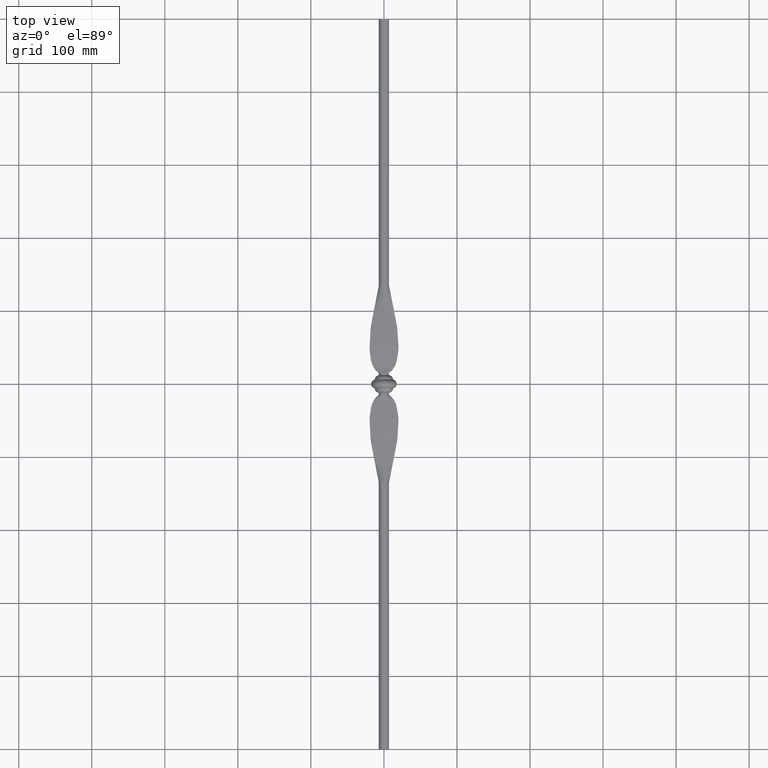
[diagram: clean part render]
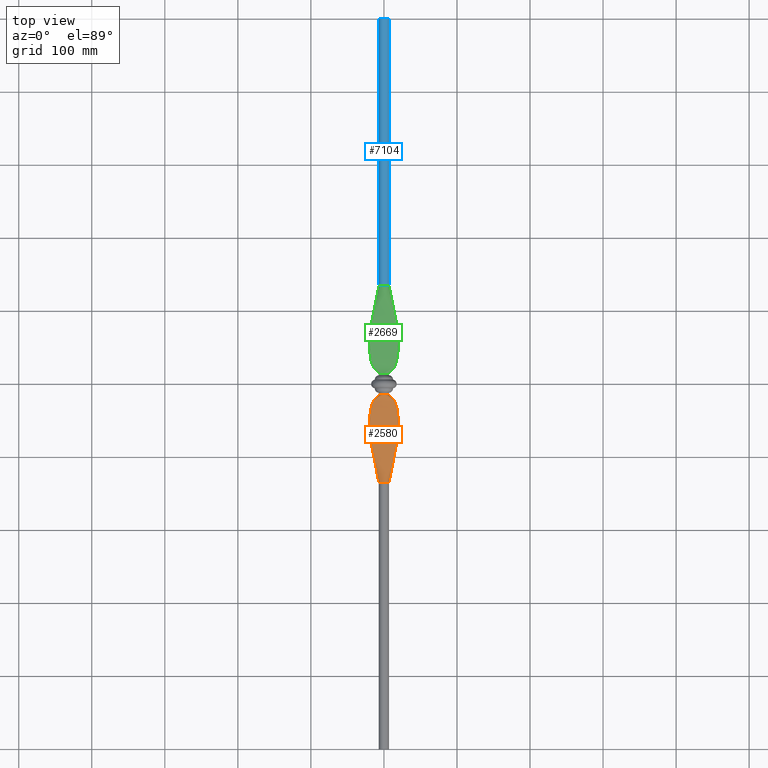
[diagram: same view with three faces highlighted in distinct colors, each labeled with its STEP entity id]
A machine part, top view with three faces highlighted in distinct colors.
Their STEP definitions:

[orange] entity #2580 — the highlighted face is a freeform B-spline surface patch.
#56 = EDGE_LOOP ( 'NONE', ( #2689, #1533, #8397, #7388 ) ) ;
#163 = CARTESIAN_POINT ( 'NONE',  ( -4.444174800295939143, -134.9999999999998579, 5.450960426284312099 ) ) ;
#224 = CARTESIAN_POINT ( 'NONE',  ( -5.997261593334625829, -14.99999999999998224, 3.676776374839473949 ) ) ;
#258 = CARTESIAN_POINT ( 'NONE',  ( 2.039018411626693172, -14.99999999999998224, 6.781144779481986795 ) ) ;
#291 = CARTESIAN_POINT ( 'NONE',  ( -5.405649642311328051, -20.00000000000000355, 4.372447557243239302 ) ) ;
#325 = CARTESIAN_POINT ( 'NONE',  ( 16.13551471795209480, -54.35732307940470065, 2.331615047226596182 ) ) ;
#390 = CARTESIAN_POINT ( 'NONE',  ( 12.68915908251746671, -54.35732307940465091, 1.484608310807433940 ) ) ;
#392 = CARTESIAN_POINT ( 'NONE',  ( -27.47809851660136005, -54.35732307940454433, 5.657255576947304299 ) ) ;
#594 = EDGE_CURVE ( 'NONE', #8235, #4312, #6315, .T. ) ;
#837 = CARTESIAN_POINT ( 'NONE',  ( 6.856841665822162035, -14.99999999999999822, 1.411702947449654966 ) ) ;
#924 = CARTESIAN_POINT ( 'NONE',  ( 9.166843033586842494E-05, -20.00000000000001066, 4.715646425158594113 ) ) ;
#956 = CARTESIAN_POINT ( 'NONE',  ( -27.47809851660136005, -54.35732307940454433, 5.657255576947304299 ) ) ;
#988 = CARTESIAN_POINT ( 'NONE',  ( 5.405680785559456858, -20.00000000000001421, 4.372452980442496084 ) ) ;
#1026 = CARTESIAN_POINT ( 'NONE',  ( -6.536258482938118952, -135.0000000000000284, 2.602573307551223181 ) ) ;
#1093 = CARTESIAN_POINT ( 'NONE',  ( 7.148164557891438342, -20.00000000000002487, 4.150363918274518227 ) ) ;
#1126 = CARTESIAN_POINT ( 'NONE',  ( 13.61873310093187506, -100.0000000000000995, 2.803856814897803140 ) ) ;
#1306 = CARTESIAN_POINT ( 'NONE',  ( 6.856862221467370233, -135.0000000000000000, 1.411707075175663295 ) ) ;
#1533 = ORIENTED_EDGE ( 'NONE', *, *, #5790, .T. ) ;
#1584 = CARTESIAN_POINT ( 'NONE',  ( 3.804171510026017167, -15.00000000000000888, 5.929995903319427164 ) ) ;
#1616 = CARTESIAN_POINT ( 'NONE',  ( 5.041053853694467790, -15.00000000000000533, 4.921823679819405051 ) ) ;
#1639 = EDGE_CURVE ( 'NONE', #2448, #8235, #2761, .T. ) ;
#1647 = CARTESIAN_POINT ( 'NONE',  ( -5.041053889611933236, -15.00000000000001066, 4.921823643031780549 ) ) ;
#1668 = CARTESIAN_POINT ( 'NONE',  ( -2.039553820284633279, -14.99999999999999112, 6.781052207825751132 ) ) ;
#1703 = CARTESIAN_POINT ( 'NONE',  ( -3.040979491009642377, -19.99999999999996803, 4.593691833101407163 ) ) ;
#1769 = CARTESIAN_POINT ( 'NONE',  ( -13.13185738359201871, -19.99999999999995381, 2.944889439690402622 ) ) ;
#1801 = CARTESIAN_POINT ( 'NONE',  ( -5.291601994311204038, -135.0000000000000284, 4.631649847564234257 ) ) ;
#1899 = CARTESIAN_POINT ( 'NONE',  ( 6.856199302796533779, -15.00000000000001599, 1.411570444693408310 ) ) ;
#1966 = CARTESIAN_POINT ( 'NONE',  ( -13.61873310093224099, -19.99999999999995381, 2.803856814897803584 ) ) ;
#2448 = VERTEX_POINT ( 'NONE', #6656 ) ;
#2468 = CARTESIAN_POINT ( 'NONE',  ( 3.040801020099367147, -99.99999999999967315, 4.593722689578361162 ) ) ;
#2473 = CARTESIAN_POINT ( 'NONE',  ( 3.098857485633832898, -15.00000000000000533, 6.327215388684813924 ) ) ;
#2514 = CARTESIAN_POINT ( 'NONE',  ( 6.856862221467370233, -135.0000000000000000, 1.411707075175663295 ) ) ;
#2531 = CARTESIAN_POINT ( 'NONE',  ( -6.536258482937726377, -14.99999999999997868, 2.602573307551223625 ) ) ;
#2563 = CARTESIAN_POINT ( 'NONE',  ( -6.856199302796595951, -14.99999999999997513, 1.411570444693410087 ) ) ;
#2580 = ADVANCED_FACE ( 'NONE', ( #7795 ), #3381, .F. ) ;
#2596 = CARTESIAN_POINT ( 'NONE',  ( 5.291619084111582438, -135.0000000000000000, 4.631659466900492461 ) ) ;
#2614 = AXIS2_PLACEMENT_3D ( 'NONE', #6864, #9135, #5350 ) ;
#2658 = CARTESIAN_POINT ( 'NONE',  ( 7.148164557891179882, -99.99999999999988631, 4.150363918274516450 ) ) ;
#2689 = ORIENTED_EDGE ( 'NONE', *, *, #7464, .F. ) ;
#2694 = CARTESIAN_POINT ( 'NONE',  ( 6.772497196122930774, -135.0000000000000000, 1.818123534248976991 ) ) ;
#2724 = CARTESIAN_POINT ( 'NONE',  ( 5.997252531312792456, -15.00000000000000888, 3.676771030734634405 ) ) ;
#2761 = CIRCLE ( 'NONE', #2614, 7.000000000000000000 ) ;
#2901 = CARTESIAN_POINT ( 'NONE',  ( 13.61873310093213796, -20.00000000000003908, 2.803856814897803140 ) ) ;
#3106 = CARTESIAN_POINT ( 'NONE',  ( 6.695309512353297521, -15.00000000000000178, 2.193035071509452649 ) ) ;
#3170 = VERTEX_POINT ( 'NONE', #9523 ) ;
#3191 = CARTESIAN_POINT ( 'NONE',  ( -5.997261593335019292, -134.9999999999999716, 3.676776374839473949 ) ) ;
#3194 = CARTESIAN_POINT ( 'NONE',  ( -3.098857531807295285, -15.00000000000001066, 6.327215366070571889 ) ) ;
#3255 = CARTESIAN_POINT ( 'NONE',  ( 0.0002750039334343680041, -135.0000000000003411, 7.146954802386306760 ) ) ;
#3290 = CARTESIAN_POINT ( 'NONE',  ( -13.13185738359227983, -99.99999999999984368, 2.944889439690403066 ) ) ;
#3322 = CARTESIAN_POINT ( 'NONE',  ( -3.467041301601914149, -14.99999999999998579, 6.117381491008856642 ) ) ;
#3381 = B_SPLINE_SURFACE_WITH_KNOTS ( 'NONE', 3, 3, ( 
 ( #2563, #4034, #956, #5533, #6243 ),
 ( #9439, #1769, #3970, #3290, #4842 ),
 ( #2531, #8586, #7891, #4002, #1026 ),
 ( #224, #6369, #4876, #4066, #3191 ),
 ( #8651, #9309, #4101, #7927, #1801 ),
 ( #9344, #4772, #7149, #8686, #163 ),
 ( #3322, #291, #4739, #5637, #9409 ),
 ( #1668, #1703, #6306, #7088, #8616 ),
 ( #5497, #924, #5567, #6271, #3255 ),
 ( #258, #5600, #7054, #2468, #7829 ),
 ( #9375, #988, #8060, #6503, #5706 ),
 ( #4974, #1093, #390, #2658, #4198 ),
 ( #3458, #5008, #325, #9533, #2596 ),
 ( #2724, #7249, #7211, #5735, #8820 ),
 ( #7998, #4939, #9468, #8026, #8098 ),
 ( #7962, #5667, #4235, #9606, #2694 ),
 ( #1899, #6437, #4165, #1126, #9568 ) ),
 .UNSPECIFIED., .F., .F., .F.,
 ( 4, 1, 1, 1, 1, 1, 1, 1, 1, 1, 1, 1, 1, 1, 4 ),
 ( 4, 1, 4 ),
 ( 0.000000000000000000, 0.06250000000000000000, 0.1250000000000000000, 0.1875000000000000000, 0.2500000000000000000, 0.3125000000000000000, 0.3750000000000000000, 0.5000000000000000000, 0.6250000000000000000, 0.6875000000000000000, 0.7500000000000000000, 0.8125000000000000000, 0.8750000000000000000, 0.9375000000000000000, 1.000000000000000000 ),
 ( 0.000000000000000000, 0.1422080359755977519, 1.000000000000000000 ),
 .UNSPECIFIED. ) ;
#3458 = CARTESIAN_POINT ( 'NONE',  ( 5.291619084111989224, -15.00000000000001954, 4.631659466900498678 ) ) ;
#3493 = CARTESIAN_POINT ( 'NONE',  ( -6.856841665811181485, -134.9999999999999432, 1.411702947447297962 ) ) ;
#3875 = CARTESIAN_POINT ( 'NONE',  ( 6.856841665822162035, -14.99999999999999822, 1.411702947449654966 ) ) ;
#3970 = CARTESIAN_POINT ( 'NONE',  ( -26.08349734730773051, -54.35732307940454433, 5.220214142259284706 ) ) ;
#4002 = CARTESIAN_POINT ( 'NONE',  ( -12.08927144907258189, -99.99999999999995737, 3.198298283466709524 ) ) ;
#4034 = CARTESIAN_POINT ( 'NONE',  ( -13.61873310093224099, -19.99999999999995381, 2.803856814897803584 ) ) ;
#4066 = CARTESIAN_POINT ( 'NONE',  ( -10.50073454545995055, -99.99999999999984368, 3.559611265878311226 ) ) ;
#4101 = CARTESIAN_POINT ( 'NONE',  ( -16.13553247050660389, -54.35732307940460117, 2.331625042883333165 ) ) ;
#4165 = CARTESIAN_POINT ( 'NONE',  ( 27.47809851660102609, -54.35732307940470065, 5.657255576947310516 ) ) ;
#4198 = CARTESIAN_POINT ( 'NONE',  ( 4.444139596681464965, -134.9999999999999716, 5.450944256851179226 ) ) ;
#4235 = CARTESIAN_POINT ( 'NONE',  ( 26.08350033501719523, -54.35732307940467933, 5.220215922383650842 ) ) ;
#4312 = VERTEX_POINT ( 'NONE', #3875 ) ;
#4382 = CARTESIAN_POINT ( 'NONE',  ( 6.856841665822162035, -14.99999999999999822, 1.411702947449654966 ) ) ;
#4739 = CARTESIAN_POINT ( 'NONE',  ( -9.378888438314591625, -54.35732307940456565, 0.7964005125170698918 ) ) ;
#4772 = CARTESIAN_POINT ( 'NONE',  ( -7.148176301025594981, -19.99999999999997158, 4.150369313203929877 ) ) ;
#4842 = CARTESIAN_POINT ( 'NONE',  ( -6.772497196123784313, -134.9999999999999432, 1.818123534248978546 ) ) ;
#4876 = CARTESIAN_POINT ( 'NONE',  ( -19.72017589151560557, -54.35732307940455144, 3.315272578232601131 ) ) ;
#4939 = CARTESIAN_POINT ( 'NONE',  ( 12.08927356644728057, -20.00000000000003908, 3.198299545031878743 ) ) ;
#4974 = CARTESIAN_POINT ( 'NONE',  ( 4.444139596681854876, -15.00000000000000355, 5.450944256851178338 ) ) ;
#5008 = CARTESIAN_POINT ( 'NONE',  ( 8.846765048007743104, -20.00000000000001421, 3.877036096761483197 ) ) ;
#5010 = CARTESIAN_POINT ( 'NONE',  ( -6.856862221467691754, -15.00000000000001243, 1.411707075175627768 ) ) ;
#5114 = CARTESIAN_POINT ( 'NONE',  ( 13.61873310093187506, -100.0000000000000426, 2.803856814897802696 ) ) ;
#5350 = DIRECTION ( 'NONE',  ( -1.000000000000000000, 3.965082230804130614E-15, 0.000000000000000000 ) ) ;
#5384 = CARTESIAN_POINT ( 'NONE',  ( -5.572341953798708225, -15.00000000000001776, 4.311099330914677452 ) ) ;
#5418 = CARTESIAN_POINT ( 'NONE',  ( 1.595528809943780324, -15.00000000000000533, 6.862278055261098686 ) ) ;
#5497 = CARTESIAN_POINT ( 'NONE',  ( 0.0002750039338347400682, -15.00000000000001599, 7.146954802386313865 ) ) ;
#5503 = CARTESIAN_POINT ( 'NONE',  ( 0.7978547802212960782, -15.00000000000000888, 7.000000002911187735 ) ) ;
#5533 = CARTESIAN_POINT ( 'NONE',  ( -13.61873310093250034, -99.99999999999995737, 2.803856814897803584 ) ) ;
#5567 = CARTESIAN_POINT ( 'NONE',  ( -0.0002840683311011952942, -54.35732307940446617, -0.2671273473494419348 ) ) ;
#5600 = CARTESIAN_POINT ( 'NONE',  ( 3.040801020099622942, -19.99999999999999289, 4.593722689578362939 ) ) ;
#5637 = CARTESIAN_POINT ( 'NONE',  ( -5.405649642311592729, -100.0000000000001990, 4.372447557243239302 ) ) ;
#5667 = CARTESIAN_POINT ( 'NONE',  ( 13.13185641946238569, -20.00000000000004619, 2.944888865246901855 ) ) ;
#5706 = CARTESIAN_POINT ( 'NONE',  ( 3.467134724559673309, -135.0000000000001421, 6.117397756600939651 ) ) ;
#5735 = CARTESIAN_POINT ( 'NONE',  ( 10.50073140489130985, -100.0000000000002700, 3.559609413075492057 ) ) ;
#5790 = EDGE_CURVE ( 'NONE', #3170, #2448, #8217, .T. ) ;
#6192 = CARTESIAN_POINT ( 'NONE',  ( 5.572341922338072351, -15.00000000000000178, 4.311099371579430795 ) ) ;
#6243 = CARTESIAN_POINT ( 'NONE',  ( -6.856199302796990303, -134.9999999999999716, 1.411570444693409865 ) ) ;
#6271 = CARTESIAN_POINT ( 'NONE',  ( 9.166843006692779346E-05, -100.0000000000002132, 4.715646425158584343 ) ) ;
#6306 = CARTESIAN_POINT ( 'NONE',  ( -5.093229944318773406, -54.35732307940466512, 0.1107937893935325296 ) ) ;
#6315 = B_SPLINE_CURVE_WITH_KNOTS ( 'NONE', 3,
 ( #1306, #5114, #7424, #2901, #4382 ),
 .UNSPECIFIED., .F., .F.,
 ( 4, 1, 4 ),
 ( 0.000000000000000000, 0.8577919640244022759, 1.000000000000000000 ),
 .UNSPECIFIED. ) ;
#6369 = CARTESIAN_POINT ( 'NONE',  ( -10.50073454545969476, -19.99999999999998224, 3.559611265878309005 ) ) ;
#6437 = CARTESIAN_POINT ( 'NONE',  ( 13.61873310093214151, -20.00000000000003553, 2.803856814897801808 ) ) ;
#6503 = CARTESIAN_POINT ( 'NONE',  ( 5.405680785559187740, -100.0000000000002132, 4.372452980442496973 ) ) ;
#6656 = CARTESIAN_POINT ( 'NONE',  ( -6.856841665811181485, -134.9999999999999432, 1.411702947447297962 ) ) ;
#6864 = CARTESIAN_POINT ( 'NONE',  ( -4.268035437749235970E-13, -134.9999999999999716, 0.000000000000000000 ) ) ;
#7054 = CARTESIAN_POINT ( 'NONE',  ( 5.093783002042742147, -54.35732307940462249, 0.1106981692561499614 ) ) ;
#7059 = CARTESIAN_POINT ( 'NONE',  ( -1.595528860021920181, -15.00000000000000533, 6.862278043617553891 ) ) ;
#7088 = CARTESIAN_POINT ( 'NONE',  ( -3.040979491009901725, -99.99999999999985789, 4.593691833101405386 ) ) ;
#7149 = CARTESIAN_POINT ( 'NONE',  ( -12.68912269209987720, -54.35732307940466512, 1.484591592635352342 ) ) ;
#7211 = CARTESIAN_POINT ( 'NONE',  ( 19.72018562371986405, -54.35732307940463670, 3.315278319823293351 ) ) ;
#7249 = CARTESIAN_POINT ( 'NONE',  ( 10.50073140489156387, -20.00000000000003197, 3.559609413075482287 ) ) ;
#7388 = ORIENTED_EDGE ( 'NONE', *, *, #594, .T. ) ;
#7424 = CARTESIAN_POINT ( 'NONE',  ( 27.47809851660103675, -54.35732307940470065, 5.657255576947306963 ) ) ;
#7464 = EDGE_CURVE ( 'NONE', #3170, #4312, #7620, .T. ) ;
#7542 = CARTESIAN_POINT ( 'NONE',  ( -6.856862221467691754, -15.00000000000001243, 1.411707075175627768 ) ) ;
#7620 = B_SPLINE_CURVE_WITH_KNOTS ( 'NONE', 3,
 ( #7542, #8320, #9072, #5384, #1647, #9258, #3194, #7059, #7775, #5503, #5418, #2473, #1584, #1616, #6192, #9230, #3106, #837 ),
 .UNSPECIFIED., .F., .F.,
 ( 4, 2, 2, 2, 2, 2, 2, 2, 4 ),
 ( 0.03231565163621009928, 0.08673673858197633590, 0.1411578255277425864, 0.1955789124735087814, 0.2499999994192749764, 0.3044210863650411714, 0.3588421733108074219, 0.4132632602565736724, 0.4676843472023398673 ),
 .UNSPECIFIED. ) ;
#7775 = CARTESIAN_POINT ( 'NONE',  ( -0.7978548313044756535, -15.00000000000000533, 6.999999997088758974 ) ) ;
#7795 = FACE_OUTER_BOUND ( 'NONE', #56, .T. ) ;
#7829 = CARTESIAN_POINT ( 'NONE',  ( 2.039018411626302374, -134.9999999999998010, 6.781144779481993012 ) ) ;
#7891 = CARTESIAN_POINT ( 'NONE',  ( -23.50760401158428081, -54.35732307940450170, 4.434933681022048546 ) ) ;
#7927 = CARTESIAN_POINT ( 'NONE',  ( -8.846759319285123269, -99.99999999999997158, 3.877032871177828355 ) ) ;
#7962 = CARTESIAN_POINT ( 'NONE',  ( 6.772497196123328678, -15.00000000000001599, 1.818123534248977435 ) ) ;
#7998 = CARTESIAN_POINT ( 'NONE',  ( 6.536263492701330335, -15.00000000000001776, 2.602576292446893369 ) ) ;
#8026 = CARTESIAN_POINT ( 'NONE',  ( 12.08927356644700524, -99.99999999999998579, 3.198299545031873858 ) ) ;
#8060 = CARTESIAN_POINT ( 'NONE',  ( 9.378791929510656544, -54.35732307940458696, 0.7963837067404820891 ) ) ;
#8062 = CARTESIAN_POINT ( 'NONE',  ( -13.61873310093250034, -99.99999999999997158, 2.803856814897803584 ) ) ;
#8098 = CARTESIAN_POINT ( 'NONE',  ( 6.536263492700926214, -135.0000000000000853, 2.602576292446890704 ) ) ;
#8217 = B_SPLINE_CURVE_WITH_KNOTS ( 'NONE', 3,
 ( #5010, #1966, #392, #8062, #3493 ),
 .UNSPECIFIED., .F., .F.,
 ( 4, 1, 4 ),
 ( 0.000000000000000000, 0.1422080359755977519, 1.000000000000000000 ),
 .UNSPECIFIED. ) ;
#8235 = VERTEX_POINT ( 'NONE', #2514 ) ;
#8320 = CARTESIAN_POINT ( 'NONE',  ( -6.695309528357136664, -15.00000000000001599, 2.193035022649720833 ) ) ;
#8397 = ORIENTED_EDGE ( 'NONE', *, *, #1639, .T. ) ;
#8586 = CARTESIAN_POINT ( 'NONE',  ( -12.08927144907232964, -19.99999999999997513, 3.198298283466711300 ) ) ;
#8616 = CARTESIAN_POINT ( 'NONE',  ( -2.039553820285021413, -134.9999999999997158, 6.781052207825748468 ) ) ;
#8651 = CARTESIAN_POINT ( 'NONE',  ( -5.291601994310805246, -14.99999999999997691, 4.631649847564239586 ) ) ;
#8686 = CARTESIAN_POINT ( 'NONE',  ( -7.148176301025851664, -99.99999999999982947, 4.150369313203930766 ) ) ;
#8820 = CARTESIAN_POINT ( 'NONE',  ( 5.997252531312405210, -134.9999999999998863, 3.676771030734635293 ) ) ;
#9072 = CARTESIAN_POINT ( 'NONE',  ( -6.399563488373734010, -15.00000000000001599, 2.946550432175217615 ) ) ;
#9135 = DIRECTION ( 'NONE',  ( 3.161507731666100645E-15, 1.000000000000000000, -0.000000000000000000 ) ) ;
#9230 = CARTESIAN_POINT ( 'NONE',  ( 6.399563466871035722, -15.00000000000000178, 2.946550478876708290 ) ) ;
#9258 = CARTESIAN_POINT ( 'NONE',  ( -3.804171553300727204, -15.00000000000000533, 5.929995875558080165 ) ) ;
#9309 = CARTESIAN_POINT ( 'NONE',  ( -8.846759319284855039, -19.99999999999998224, 3.877032871177832352 ) ) ;
#9344 = CARTESIAN_POINT ( 'NONE',  ( -4.444174800295549232, -14.99999999999998046, 5.450960426284308546 ) ) ;
#9375 = CARTESIAN_POINT ( 'NONE',  ( 3.467134724560076098, -15.00000000000001954, 6.117397756600950309 ) ) ;
#9409 = CARTESIAN_POINT ( 'NONE',  ( -3.467041301602312053, -135.0000000000002558, 6.117381491008856642 ) ) ;
#9439 = CARTESIAN_POINT ( 'NONE',  ( -6.772497196123390850, -14.99999999999997513, 1.818123534248978990 ) ) ;
#9468 = CARTESIAN_POINT ( 'NONE',  ( 23.50759745011896484, -54.35732307940468644, 4.434929771598596915 ) ) ;
#9523 = CARTESIAN_POINT ( 'NONE',  ( -6.856862221467691754, -15.00000000000001243, 1.411707075175627768 ) ) ;
#9533 = CARTESIAN_POINT ( 'NONE',  ( 8.846765048007476651, -99.99999999999991473, 3.877036096761474315 ) ) ;
#9568 = CARTESIAN_POINT ( 'NONE',  ( 6.856199302796136763, -135.0000000000000284, 1.411570444693408088 ) ) ;
#9606 = CARTESIAN_POINT ( 'NONE',  ( 13.13185641946211568, -100.0000000000000711, 2.944888865246902299 ) ) ;

[blue] entity #7104 — the highlighted cylindrical surface (edge-blend (fillet) strip) has radius 7 mm, axis along (0, -1, -0).
#42 = CIRCLE ( 'NONE', #6402, 6.999999999999999112 ) ;
#59 = CARTESIAN_POINT ( 'NONE',  ( -6.999998736978388258, 135.0000000000000000, 1.800875171035335239E-15 ) ) ;
#370 = ORIENTED_EDGE ( 'NONE', *, *, #9126, .T. ) ;
#619 = VERTEX_POINT ( 'NONE', #9060 ) ;
#634 = CIRCLE ( 'NONE', #1080, 7.000000000000000000 ) ;
#893 = EDGE_CURVE ( 'NONE', #9277, #1868, #634, .T. ) ;
#1080 = AXIS2_PLACEMENT_3D ( 'NONE', #3594, #1334, #2853 ) ;
#1224 = AXIS2_PLACEMENT_3D ( 'NONE', #8156, #4330, #3449 ) ;
#1334 = DIRECTION ( 'NONE',  ( -1.053835910555366882E-15, 1.000000000000000000, 0.000000000000000000 ) ) ;
#1345 = VERTEX_POINT ( 'NONE', #6104 ) ;
#1535 = DIRECTION ( 'NONE',  ( 1.053835910555366882E-15, -1.000000000000000000, -0.000000000000000000 ) ) ;
#1868 = VERTEX_POINT ( 'NONE', #6404 ) ;
#2057 = FACE_OUTER_BOUND ( 'NONE', #6292, .T. ) ;
#2207 = VECTOR ( 'NONE', #2444, 1000.000000000000000 ) ;
#2349 = DIRECTION ( 'NONE',  ( 1.053835910555366882E-15, -1.000000000000000000, -0.000000000000000000 ) ) ;
#2391 = CARTESIAN_POINT ( 'NONE',  ( -5.477828417988082030E-13, 519.7989898732233769, 0.000000000000000000 ) ) ;
#2444 = DIRECTION ( 'NONE',  ( 1.053835910555366882E-15, -1.000000000000000000, -0.000000000000000000 ) ) ;
#2519 = EDGE_CURVE ( 'NONE', #619, #1868, #9558, .T. ) ;
#2829 = CARTESIAN_POINT ( 'NONE',  ( -7.000000000000524913, 500.0000000000000000, 8.572527594031705904E-16 ) ) ;
#2842 = EDGE_CURVE ( 'NONE', #1345, #9277, #5158, .T. ) ;
#2853 = DIRECTION ( 'NONE',  ( -1.000000000000000000, 0.000000000000000000, 0.000000000000000000 ) ) ;
#3449 = DIRECTION ( 'NONE',  ( -1.000000000000000000, 0.000000000000000000, 0.000000000000000000 ) ) ;
#3594 = CARTESIAN_POINT ( 'NONE',  ( -1.422678479249745492E-13, 134.9999999999999716, 0.000000000000000000 ) ) ;
#3721 = VECTOR ( 'NONE', #2349, 1000.000000000000000 ) ;
#3740 = CARTESIAN_POINT ( 'NONE',  ( -5.269179552776833920E-13, 500.0000000000000000, 0.000000000000000000 ) ) ;
#3773 = CARTESIAN_POINT ( 'NONE',  ( -1.422678479249745492E-13, 134.9999999999999716, 0.000000000000000000 ) ) ;
#4294 = CIRCLE ( 'NONE', #8375, 7.000000000000000000 ) ;
#4330 = DIRECTION ( 'NONE',  ( -1.053835910555366882E-15, 1.000000000000000000, 0.000000000000000000 ) ) ;
#4752 = EDGE_CURVE ( 'NONE', #9871, #1345, #4294, .T. ) ;
#4786 = ORIENTED_EDGE ( 'NONE', *, *, #893, .T. ) ;
#5035 = ORIENTED_EDGE ( 'NONE', *, *, #4752, .T. ) ;
#5158 = CIRCLE ( 'NONE', #1224, 7.000000000000000000 ) ;
#5336 = DIRECTION ( 'NONE',  ( -1.053835910555366882E-15, 1.000000000000000000, 0.000000000000000000 ) ) ;
#5898 = AXIS2_PLACEMENT_3D ( 'NONE', #2391, #1535, #7757 ) ;
#5957 = VERTEX_POINT ( 'NONE', #2829 ) ;
#6104 = CARTESIAN_POINT ( 'NONE',  ( -6.856862221467938667, 135.0000000000000000, 1.411707075175663295 ) ) ;
#6152 = DIRECTION ( 'NONE',  ( -1.000000000000000000, 0.000000000000000000, 0.000000000000000000 ) ) ;
#6189 = CARTESIAN_POINT ( 'NONE',  ( 6.999999999999451106, 519.7989898732233769, 0.000000000000000000 ) ) ;
#6220 = CARTESIAN_POINT ( 'NONE',  ( -7.000000000000547118, 519.7989898732233769, 8.572527594031472204E-16 ) ) ;
#6292 = EDGE_LOOP ( 'NONE', ( #8183, #370, #5035, #8478, #4786, #9120 ) ) ;
#6402 = AXIS2_PLACEMENT_3D ( 'NONE', #3740, #7600, #8372 ) ;
#6404 = CARTESIAN_POINT ( 'NONE',  ( 6.999998736978104041, 135.0000000000000000, 4.441785358619756095E-15 ) ) ;
#6766 = EDGE_CURVE ( 'NONE', #5957, #619, #42, .T. ) ;
#7095 = CARTESIAN_POINT ( 'NONE',  ( 6.856841665810612163, 135.0000000000000000, 1.411702947447297962 ) ) ;
#7104 = ADVANCED_FACE ( 'NONE', ( #2057 ), #9128, .T. ) ;
#7600 = DIRECTION ( 'NONE',  ( 0.000000000000000000, 1.000000000000000000, 0.000000000000000000 ) ) ;
#7757 = DIRECTION ( 'NONE',  ( 1.000000000000000000, 0.000000000000000000, 0.000000000000000000 ) ) ;
#8156 = CARTESIAN_POINT ( 'NONE',  ( -1.422678479249745492E-13, 134.9999999999999716, 0.000000000000000000 ) ) ;
#8183 = ORIENTED_EDGE ( 'NONE', *, *, #6766, .F. ) ;
#8372 = DIRECTION ( 'NONE',  ( 0.000000000000000000, 0.000000000000000000, 1.000000000000000000 ) ) ;
#8375 = AXIS2_PLACEMENT_3D ( 'NONE', #3773, #5336, #6152 ) ;
#8478 = ORIENTED_EDGE ( 'NONE', *, *, #2842, .T. ) ;
#9060 = CARTESIAN_POINT ( 'NONE',  ( 6.999999999999472422, 500.0000000000000000, 0.000000000000000000 ) ) ;
#9120 = ORIENTED_EDGE ( 'NONE', *, *, #2519, .F. ) ;
#9126 = EDGE_CURVE ( 'NONE', #5957, #9871, #9736, .T. ) ;
#9128 = CYLINDRICAL_SURFACE ( 'NONE', #5898, 6.999999999999999112 ) ;
#9277 = VERTEX_POINT ( 'NONE', #7095 ) ;
#9558 = LINE ( 'NONE', #6189, #3721 ) ;
#9736 = LINE ( 'NONE', #6220, #2207 ) ;
#9871 = VERTEX_POINT ( 'NONE', #59 ) ;

[green] entity #2669 — the highlighted face is a freeform B-spline surface patch.
#196 = CARTESIAN_POINT ( 'NONE',  ( 5.405680785559499490, 20.00000000000000355, 4.372452980442496084 ) ) ;
#239 = B_SPLINE_CURVE_WITH_KNOTS ( 'NONE', 3,
 ( #5904, #3904, #796, #8371, #9245, #854, #2306, #6178, #1604, #6947, #9216, #2371, #6206, #4670, #5371, #4645, #3805 ),
 .UNSPECIFIED., .F., .F.,
 ( 4, 1, 1, 1, 1, 1, 1, 1, 1, 1, 1, 1, 1, 1, 4 ),
 ( 0.000000000000000000, 0.06250000000000000000, 0.1250000000000000000, 0.1875000000000000000, 0.2500000000000000000, 0.3125000000000000000, 0.3750000000000000000, 0.5000000000000000000, 0.6250000000000000000, 0.6875000000000000000, 0.7500000000000000000, 0.8125000000000000000, 0.8750000000000000000, 0.9375000000000000000, 1.000000000000000000 ),
 .UNSPECIFIED. ) ;
#454 = CARTESIAN_POINT ( 'NONE',  ( -6.856823711743604832, 14.99999999999998757, 1.411699308274112497 ) ) ;
#490 = CARTESIAN_POINT ( 'NONE',  ( -10.50073454545965213, 20.00000000000000355, 3.559611265878309005 ) ) ;
#528 = CARTESIAN_POINT ( 'NONE',  ( -13.13185738359197785, 19.99999999999998224, 2.944889439690402622 ) ) ;
#561 = CARTESIAN_POINT ( 'NONE',  ( -13.61873310093229072, 99.99999999999998579, 2.803856814897803584 ) ) ;
#591 = CARTESIAN_POINT ( 'NONE',  ( 5.291619084112020310, 15.00000000000001066, 4.631659466900498678 ) ) ;
#629 = CARTESIAN_POINT ( 'NONE',  ( 3.040801020099665131, 19.99999999999998579, 4.593722689578362939 ) ) ;
#630 = CARTESIAN_POINT ( 'NONE',  ( 6.772497196123359764, 15.00000000000000355, 1.818123534248977435 ) ) ;
#637 = CARTESIAN_POINT ( 'NONE',  ( 6.856844238907559230, 15.00000000000000178, 1.411703380663931195 ) ) ;
#664 = CARTESIAN_POINT ( 'NONE',  ( -3.040979491009600189, 19.99999999999997513, 4.593691833101407163 ) ) ;
#665 = CARTESIAN_POINT ( 'NONE',  ( 19.72018562371998129, 54.35732307940459407, 3.315278319823293351 ) ) ;
#758 = EDGE_CURVE ( 'NONE', #7139, #1345, #9388, .T. ) ;
#796 = CARTESIAN_POINT ( 'NONE',  ( -6.536258482937695291, 14.99999999999999289, 2.602573307551223625 ) ) ;
#854 = CARTESIAN_POINT ( 'NONE',  ( -4.444174800295518146, 14.99999999999998934, 5.450960426284308546 ) ) ;
#1224 = AXIS2_PLACEMENT_3D ( 'NONE', #8156, #4330, #3449 ) ;
#1236 = CARTESIAN_POINT ( 'NONE',  ( -5.997261593334735075, 134.9999999999999716, 3.676776374839473949 ) ) ;
#1302 = CARTESIAN_POINT ( 'NONE',  ( -19.72017589151548833, 54.35732307940459407, 3.315272578232601131 ) ) ;
#1345 = VERTEX_POINT ( 'NONE', #6104 ) ;
#1373 = CARTESIAN_POINT ( 'NONE',  ( 13.13185641946242654, 20.00000000000001776, 2.944888865246901855 ) ) ;
#1398 = B_SPLINE_CURVE_WITH_KNOTS ( 'NONE', 3,
 ( #5915, #7504, #8245, #6655, #637 ),
 .UNSPECIFIED., .F., .F.,
 ( 4, 1, 4 ),
 ( 0.000000000000000000, 0.8577919640244022759, 1.000000000000000000 ),
 .UNSPECIFIED. ) ;
#1407 = CARTESIAN_POINT ( 'NONE',  ( -3.467041301601882619, 14.99999999999999289, 6.117381491008856642 ) ) ;
#1440 = CARTESIAN_POINT ( 'NONE',  ( -2.039553820284736751, 134.9999999999997158, 6.781052207825748468 ) ) ;
#1551 = CARTESIAN_POINT ( 'NONE',  ( 3.467134724560107628, 15.00000000000001421, 6.117397756600950309 ) ) ;
#1604 = CARTESIAN_POINT ( 'NONE',  ( 0.0002750039338663551325, 15.00000000000001599, 7.146954802386313865 ) ) ;
#1656 = CARTESIAN_POINT ( 'NONE',  ( -6.856823711743604832, 14.99999999999998757, 1.411699308274112497 ) ) ;
#1999 = CARTESIAN_POINT ( 'NONE',  ( -12.68912269209976351, 54.35732307940469354, 1.484591592635352342 ) ) ;
#2030 = CARTESIAN_POINT ( 'NONE',  ( -6.856199302796564865, 14.99999999999998934, 1.411570444693410087 ) ) ;
#2067 = CARTESIAN_POINT ( 'NONE',  ( -27.47809851660124281, 54.35732307940460117, 5.657255576947304299 ) ) ;
#2107 = CARTESIAN_POINT ( 'NONE',  ( -13.61873310093220013, 19.99999999999998224, 2.803856814897803584 ) ) ;
#2108 = CARTESIAN_POINT ( 'NONE',  ( 16.13551471795220849, 54.35732307940466512, 2.331615047226596182 ) ) ;
#2142 = CARTESIAN_POINT ( 'NONE',  ( -23.50760401158416713, 54.35732307940455144, 4.434933681022048546 ) ) ;
#2143 = CARTESIAN_POINT ( 'NONE',  ( 6.856199302796420980, 135.0000000000000000, 1.411570444693408088 ) ) ;
#2174 = CARTESIAN_POINT ( 'NONE',  ( -3.467041301602027836, 135.0000000000002558, 6.117381491008856642 ) ) ;
#2175 = CARTESIAN_POINT ( 'NONE',  ( 6.856199302796564865, 15.00000000000000355, 1.411570444693408310 ) ) ;
#2211 = CARTESIAN_POINT ( 'NONE',  ( -5.405649642311286307, 20.00000000000001421, 4.372447557243239302 ) ) ;
#2248 = CARTESIAN_POINT ( 'NONE',  ( 10.50073140489152124, 100.0000000000002416, 3.559609413075492057 ) ) ;
#2282 = ORIENTED_EDGE ( 'NONE', *, *, #4706, .T. ) ;
#2306 = CARTESIAN_POINT ( 'NONE',  ( -3.467041301601882619, 14.99999999999999289, 6.117381491008856642 ) ) ;
#2371 = CARTESIAN_POINT ( 'NONE',  ( 4.444139596681885962, 14.99999999999999467, 5.450944256851178338 ) ) ;
#2669 = ADVANCED_FACE ( 'NONE', ( #9816 ), #9872, .T. ) ;
#2757 = CARTESIAN_POINT ( 'NONE',  ( -4.444174800295654926, 134.9999999999998579, 5.450960426284312099 ) ) ;
#2842 = EDGE_CURVE ( 'NONE', #1345, #9277, #5158, .T. ) ;
#2897 = CARTESIAN_POINT ( 'NONE',  ( -16.13553247050649020, 54.35732307940463670, 2.331625042883333165 ) ) ;
#2898 = CARTESIAN_POINT ( 'NONE',  ( 7.148164557891390380, 99.99999999999987210, 4.150363918274516450 ) ) ;
#2933 = CARTESIAN_POINT ( 'NONE',  ( 5.093783002042856722, 54.35732307940460828, 0.1106981692561499614 ) ) ;
#2934 = CARTESIAN_POINT ( 'NONE',  ( 27.47809851660113978, 54.35732307940465091, 5.657255576947310516 ) ) ;
#2968 = CARTESIAN_POINT ( 'NONE',  ( 0.0002750039337189036912, 135.0000000000003411, 7.146954802386306760 ) ) ;
#3115 = VERTEX_POINT ( 'NONE', #4120 ) ;
#3449 = DIRECTION ( 'NONE',  ( -1.000000000000000000, 0.000000000000000000, 0.000000000000000000 ) ) ;
#3597 = CARTESIAN_POINT ( 'NONE',  ( -12.08927144907237228, 99.99999999999998579, 3.198298283466709524 ) ) ;
#3598 = CARTESIAN_POINT ( 'NONE',  ( 26.08350033501730891, 54.35732307940462249, 5.220215922383650842 ) ) ;
#3637 = CARTESIAN_POINT ( 'NONE',  ( 23.50759745011907853, 54.35732307940463670, 4.434929771598596915 ) ) ;
#3675 = CARTESIAN_POINT ( 'NONE',  ( -7.148176301025552348, 19.99999999999998579, 4.150369313203929877 ) ) ;
#3676 = CARTESIAN_POINT ( 'NONE',  ( 6.536263492701211320, 135.0000000000000853, 2.602576292446890704 ) ) ;
#3705 = CARTESIAN_POINT ( 'NONE',  ( -0.0002840683309866279217, 54.35732307940446617, -0.2671273473494419348 ) ) ;
#3805 = CARTESIAN_POINT ( 'NONE',  ( 6.856844238907559230, 15.00000000000000178, 1.411703380663931195 ) ) ;
#3904 = CARTESIAN_POINT ( 'NONE',  ( -6.772497196123359764, 14.99999999999998934, 1.818123534248978990 ) ) ;
#4120 = CARTESIAN_POINT ( 'NONE',  ( 6.856844238907559230, 15.00000000000000178, 1.411703380663931195 ) ) ;
#4299 = CARTESIAN_POINT ( 'NONE',  ( -6.856862221467938667, 135.0000000000000000, 1.411707075175663295 ) ) ;
#4330 = DIRECTION ( 'NONE',  ( -1.053835910555366882E-15, 1.000000000000000000, 0.000000000000000000 ) ) ;
#4446 = CARTESIAN_POINT ( 'NONE',  ( 12.08927356644732320, 20.00000000000001421, 3.198299545031878743 ) ) ;
#4479 = CARTESIAN_POINT ( 'NONE',  ( 2.039018411626725147, 14.99999999999997868, 6.781144779481986795 ) ) ;
#4517 = CARTESIAN_POINT ( 'NONE',  ( 12.68915908251758218, 54.35732307940462249, 1.484608310807433940 ) ) ;
#4645 = CARTESIAN_POINT ( 'NONE',  ( 6.772497196123359764, 15.00000000000000355, 1.818123534248977435 ) ) ;
#4670 = CARTESIAN_POINT ( 'NONE',  ( 5.997252531312823542, 14.99999999999999645, 3.676771030734634405 ) ) ;
#4706 = EDGE_CURVE ( 'NONE', #7139, #3115, #239, .T. ) ;
#4936 = CARTESIAN_POINT ( 'NONE',  ( -13.61873310093229072, 100.0000000000000000, 2.803856814897803584 ) ) ;
#4970 = CARTESIAN_POINT ( 'NONE',  ( -13.61873310093220013, 19.99999999999998224, 2.803856814897803584 ) ) ;
#5074 = CARTESIAN_POINT ( 'NONE',  ( -6.772497196123500096, 134.9999999999999716, 1.818123534248978546 ) ) ;
#5140 = CARTESIAN_POINT ( 'NONE',  ( -5.291601994310774160, 14.99999999999998757, 4.631649847564239586 ) ) ;
#5141 = CARTESIAN_POINT ( 'NONE',  ( 5.997252531312823542, 14.99999999999999645, 3.676771030734634405 ) ) ;
#5158 = CIRCLE ( 'NONE', #1224, 7.000000000000000000 ) ;
#5174 = CARTESIAN_POINT ( 'NONE',  ( -8.846759319284812406, 20.00000000000000000, 3.877032871177832352 ) ) ;
#5175 = CARTESIAN_POINT ( 'NONE',  ( 13.13185641946232529, 100.0000000000000426, 2.944888865246902299 ) ) ;
#5210 = ORIENTED_EDGE ( 'NONE', *, *, #758, .F. ) ;
#5212 = CARTESIAN_POINT ( 'NONE',  ( -13.13185738359207022, 99.99999999999987210, 2.944889439690403066 ) ) ;
#5213 = CARTESIAN_POINT ( 'NONE',  ( 8.846765048007686261, 99.99999999999990052, 3.877036096761474315 ) ) ;
#5243 = CARTESIAN_POINT ( 'NONE',  ( -2.039553820284601304, 14.99999999999999467, 6.781052207825751132 ) ) ;
#5244 = CARTESIAN_POINT ( 'NONE',  ( 5.997252531312689428, 134.9999999999998863, 3.676771030734635293 ) ) ;
#5271 = CARTESIAN_POINT ( 'NONE',  ( 5.291619084111866655, 135.0000000000000000, 4.631659466900492461 ) ) ;
#5371 = CARTESIAN_POINT ( 'NONE',  ( 6.536263492701362310, 15.00000000000000533, 2.602576292446893369 ) ) ;
#5621 = ORIENTED_EDGE ( 'NONE', *, *, #2842, .F. ) ;
#5623 = CARTESIAN_POINT ( 'NONE',  ( 3.467134724559957970, 135.0000000000001421, 6.117397756600939651 ) ) ;
#5838 = CARTESIAN_POINT ( 'NONE',  ( -8.846759319284913659, 99.99999999999998579, 3.877032871177828355 ) ) ;
#5904 = CARTESIAN_POINT ( 'NONE',  ( -6.856823711743604832, 14.99999999999998757, 1.411699308274112497 ) ) ;
#5907 = CARTESIAN_POINT ( 'NONE',  ( 6.772497196123215879, 134.9999999999999716, 1.818123534248976991 ) ) ;
#5915 = CARTESIAN_POINT ( 'NONE',  ( 6.856841665810612163, 135.0000000000000000, 1.411702947447297962 ) ) ;
#5946 = CARTESIAN_POINT ( 'NONE',  ( 4.444139596681750071, 134.9999999999999716, 5.450944256851179226 ) ) ;
#5976 = CARTESIAN_POINT ( 'NONE',  ( 3.040801020099578089, 99.99999999999967315, 4.593722689578361162 ) ) ;
#6012 = CARTESIAN_POINT ( 'NONE',  ( -5.093229944318658831, 54.35732307940467933, 0.1107937893935325296 ) ) ;
#6013 = CARTESIAN_POINT ( 'NONE',  ( 6.536263492701362310, 15.00000000000000533, 2.602576292446893369 ) ) ;
#6104 = CARTESIAN_POINT ( 'NONE',  ( -6.856862221467938667, 135.0000000000000000, 1.411707075175663295 ) ) ;
#6178 = CARTESIAN_POINT ( 'NONE',  ( -2.039553820284601304, 14.99999999999999467, 6.781052207825751132 ) ) ;
#6206 = CARTESIAN_POINT ( 'NONE',  ( 5.291619084112020310, 15.00000000000001066, 4.631659466900498678 ) ) ;
#6405 = CARTESIAN_POINT ( 'NONE',  ( 9.378791929510772007, 54.35732307940456565, 0.7963837067404820891 ) ) ;
#6507 = ORIENTED_EDGE ( 'NONE', *, *, #7698, .F. ) ;
#6570 = CARTESIAN_POINT ( 'NONE',  ( -5.291601994310918933, 135.0000000000000284, 4.631649847564234257 ) ) ;
#6646 = CARTESIAN_POINT ( 'NONE',  ( -10.50073454545974094, 99.99999999999987210, 3.559611265878311226 ) ) ;
#6655 = CARTESIAN_POINT ( 'NONE',  ( 13.61873310093218059, 20.00000000000001066, 2.803856814897803140 ) ) ;
#6679 = CARTESIAN_POINT ( 'NONE',  ( 7.148164557891480975, 20.00000000000001066, 4.150363918274518227 ) ) ;
#6709 = CARTESIAN_POINT ( 'NONE',  ( 12.08927356644721485, 99.99999999999995737, 3.198299545031873858 ) ) ;
#6746 = CARTESIAN_POINT ( 'NONE',  ( -9.378888438314476161, 54.35732307940458696, 0.7964005125170698918 ) ) ;
#6787 = CARTESIAN_POINT ( 'NONE',  ( 0.0002750039338663551325, 15.00000000000001599, 7.146954802386313865 ) ) ;
#6947 = CARTESIAN_POINT ( 'NONE',  ( 2.039018411626725147, 14.99999999999997868, 6.781144779481986795 ) ) ;
#6992 = CARTESIAN_POINT ( 'NONE',  ( 4.444139596681885962, 14.99999999999999467, 5.450944256851178338 ) ) ;
#7025 = EDGE_LOOP ( 'NONE', ( #2282, #6507, #5621, #5210 ) ) ;
#7095 = CARTESIAN_POINT ( 'NONE',  ( 6.856841665810612163, 135.0000000000000000, 1.411702947447297962 ) ) ;
#7139 = VERTEX_POINT ( 'NONE', #1656 ) ;
#7234 = CARTESIAN_POINT ( 'NONE',  ( 5.405680785559398238, 100.0000000000001990, 4.372452980442496973 ) ) ;
#7278 = CARTESIAN_POINT ( 'NONE',  ( -27.47809851660124281, 54.35732307940460117, 5.657255576947304299 ) ) ;
#7354 = CARTESIAN_POINT ( 'NONE',  ( -7.148176301025641166, 99.99999999999984368, 4.150369313203930766 ) ) ;
#7460 = CARTESIAN_POINT ( 'NONE',  ( -26.08349734730761682, 54.35732307940460117, 5.220214142259284706 ) ) ;
#7496 = CARTESIAN_POINT ( 'NONE',  ( -5.997261593334594743, 14.99999999999999467, 3.676776374839473949 ) ) ;
#7497 = CARTESIAN_POINT ( 'NONE',  ( 8.846765048007783960, 19.99999999999999645, 3.877036096761483197 ) ) ;
#7504 = CARTESIAN_POINT ( 'NONE',  ( 13.61873310093208467, 100.0000000000000142, 2.803856814897802696 ) ) ;
#7529 = CARTESIAN_POINT ( 'NONE',  ( -3.040979491009690783, 99.99999999999985789, 4.593691833101405386 ) ) ;
#7530 = CARTESIAN_POINT ( 'NONE',  ( 13.61873310093218414, 20.00000000000000711, 2.803856814897801808 ) ) ;
#7561 = CARTESIAN_POINT ( 'NONE',  ( 9.166843027769497462E-05, 100.0000000000002132, 4.715646425158584343 ) ) ;
#7698 = EDGE_CURVE ( 'NONE', #9277, #3115, #1398, .T. ) ;
#8156 = CARTESIAN_POINT ( 'NONE',  ( -1.422678479249745492E-13, 134.9999999999999716, 0.000000000000000000 ) ) ;
#8237 = CARTESIAN_POINT ( 'NONE',  ( -12.08927144907228879, 20.00000000000000000, 3.198298283466711300 ) ) ;
#8238 = CARTESIAN_POINT ( 'NONE',  ( 10.50073140489160650, 20.00000000000001066, 3.559609413075482287 ) ) ;
#8245 = CARTESIAN_POINT ( 'NONE',  ( 27.47809851660115044, 54.35732307940465091, 5.657255576947306963 ) ) ;
#8268 = CARTESIAN_POINT ( 'NONE',  ( -4.444174800295518146, 14.99999999999998934, 5.450960426284308546 ) ) ;
#8301 = CARTESIAN_POINT ( 'NONE',  ( 2.039018411626587035, 134.9999999999998010, 6.781144779481993012 ) ) ;
#8371 = CARTESIAN_POINT ( 'NONE',  ( -5.997261593334594743, 14.99999999999999467, 3.676776374839473949 ) ) ;
#8923 = CARTESIAN_POINT ( 'NONE',  ( -6.772497196123359764, 14.99999999999998934, 1.818123534248978990 ) ) ;
#8954 = CARTESIAN_POINT ( 'NONE',  ( -6.856199302796705197, 135.0000000000000000, 1.411570444693409865 ) ) ;
#9024 = CARTESIAN_POINT ( 'NONE',  ( 13.61873310093208467, 100.0000000000000711, 2.803856814897803140 ) ) ;
#9056 = CARTESIAN_POINT ( 'NONE',  ( 9.166843037802186660E-05, 20.00000000000001066, 4.715646425158594113 ) ) ;
#9216 = CARTESIAN_POINT ( 'NONE',  ( 3.467134724560107628, 15.00000000000001421, 6.117397756600950309 ) ) ;
#9245 = CARTESIAN_POINT ( 'NONE',  ( -5.291601994310774160, 14.99999999999998757, 4.631649847564239586 ) ) ;
#9277 = VERTEX_POINT ( 'NONE', #7095 ) ;
#9388 = B_SPLINE_CURVE_WITH_KNOTS ( 'NONE', 3,
 ( #454, #4970, #7278, #4936, #4299 ),
 .UNSPECIFIED., .F., .F.,
 ( 4, 1, 4 ),
 ( 0.000000000000000000, 0.1422080359755977519, 1.000000000000000000 ),
 .UNSPECIFIED. ) ;
#9712 = CARTESIAN_POINT ( 'NONE',  ( -6.536258482937695291, 14.99999999999999289, 2.602573307551223625 ) ) ;
#9751 = CARTESIAN_POINT ( 'NONE',  ( -6.536258482937834735, 135.0000000000000284, 2.602573307551223181 ) ) ;
#9812 = CARTESIAN_POINT ( 'NONE',  ( -5.405649642311382230, 100.0000000000002132, 4.372447557243239302 ) ) ;
#9816 = FACE_OUTER_BOUND ( 'NONE', #7025, .T. ) ;
#9872 = B_SPLINE_SURFACE_WITH_KNOTS ( 'NONE', 3, 3, ( 
 ( #2030, #2107, #2067, #561, #8954 ),
 ( #8923, #528, #7460, #5212, #5074 ),
 ( #9712, #8237, #2142, #3597, #9751 ),
 ( #7496, #490, #1302, #6646, #1236 ),
 ( #5140, #5174, #2897, #5838, #6570 ),
 ( #8268, #3675, #1999, #7354, #2757 ),
 ( #1407, #2211, #6746, #9812, #2174 ),
 ( #5243, #664, #6012, #7529, #1440 ),
 ( #6787, #9056, #3705, #7561, #2968 ),
 ( #4479, #629, #2933, #5976, #8301 ),
 ( #1551, #196, #6405, #7234, #5623 ),
 ( #6992, #6679, #4517, #2898, #5946 ),
 ( #591, #7497, #2108, #5213, #5271 ),
 ( #5141, #8238, #665, #2248, #5244 ),
 ( #6013, #4446, #3637, #6709, #3676 ),
 ( #630, #1373, #3598, #5175, #5907 ),
 ( #2175, #7530, #2934, #9024, #2143 ) ),
 .UNSPECIFIED., .F., .F., .F.,
 ( 4, 1, 1, 1, 1, 1, 1, 1, 1, 1, 1, 1, 1, 1, 4 ),
 ( 4, 1, 4 ),
 ( 0.000000000000000000, 0.06250000000000000000, 0.1250000000000000000, 0.1875000000000000000, 0.2500000000000000000, 0.3125000000000000000, 0.3750000000000000000, 0.5000000000000000000, 0.6250000000000000000, 0.6875000000000000000, 0.7500000000000000000, 0.8125000000000000000, 0.8750000000000000000, 0.9375000000000000000, 1.000000000000000000 ),
 ( 0.000000000000000000, 0.1422080359755977519, 1.000000000000000000 ),
 .UNSPECIFIED. ) ;